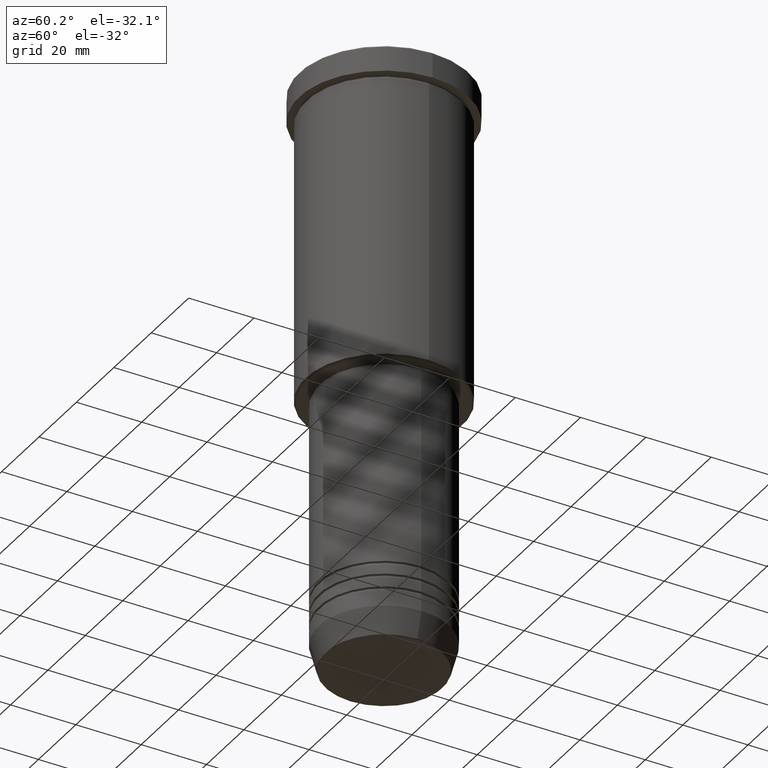
[diagram: clean part render]
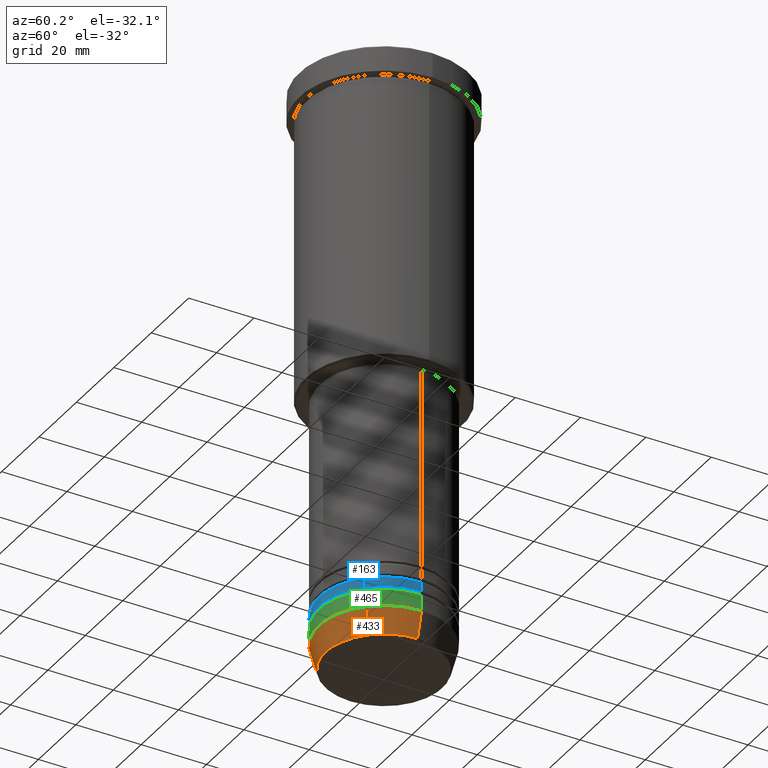
[diagram: same view with three faces highlighted in distinct colors, each labeled with its STEP entity id]
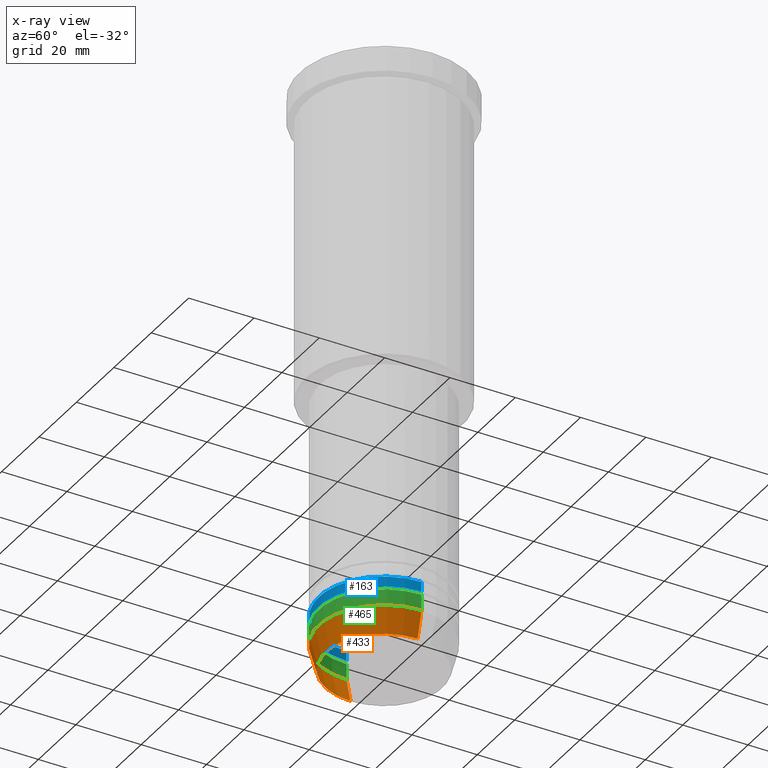
[diagram: x-ray of the same camera — body ghosted, the three highlighted faces saturated]
A machine part, auxiliary view with three faces highlighted in distinct colors.
The next image is the same camera in x-ray (body ghosted, the three faces saturated) — at least one of them is partly hidden behind the body in this view.
Their STEP definitions:

[orange] entity #433 — the highlighted conical surface has half-angle 15 deg.
#9 = DIRECTION ( 'NONE',  ( 0.2588190451025213501, 0.000000000000000000, 0.9659258262890680902 ) ) ;
#48 = LINE ( 'NONE', #1153, #486 ) ;
#67 = ORIENTED_EDGE ( 'NONE', *, *, #251, .T. ) ;
#75 = AXIS2_PLACEMENT_3D ( 'NONE', #825, #532, #728 ) ;
#80 = VERTEX_POINT ( 'NONE', #1065 ) ;
#172 = DIRECTION ( 'NONE',  ( 1.000000000000000000, 0.000000000000000000, 0.000000000000000000 ) ) ;
#173 = LINE ( 'NONE', #382, #1176 ) ;
#193 = DIRECTION ( 'NONE',  ( -0.000000000000000000, -0.000000000000000000, 1.000000000000000000 ) ) ;
#205 = CARTESIAN_POINT ( 'NONE',  ( 17.95570587970607690, 0.000000000000000000, -179.6294095225512706 ) ) ;
#251 = EDGE_CURVE ( 'NONE', #291, #963, #1006, .T. ) ;
#260 = CONICAL_SURFACE ( 'NONE', #75, 20.00000000000000355, 0.2617993877991500740 ) ;
#291 = VERTEX_POINT ( 'NONE', #477 ) ;
#365 = CARTESIAN_POINT ( 'NONE',  ( 0.000000000000000000, 0.000000000000000000, -172.0000000000000000 ) ) ;
#382 = CARTESIAN_POINT ( 'NONE',  ( 20.00000000000000355, 0.000000000000000000, -172.0000000000000000 ) ) ;
#433 = ADVANCED_FACE ( 'NONE', ( #1114 ), #260, .T. ) ;
#477 = CARTESIAN_POINT ( 'NONE',  ( -17.95570587970607690, 2.324116685748021371E-15, -179.6294095225512706 ) ) ;
#481 = AXIS2_PLACEMENT_3D ( 'NONE', #1012, #193, #924 ) ;
#486 = VECTOR ( 'NONE', #1157, 1000.000000000000000 ) ;
#532 = DIRECTION ( 'NONE',  ( -0.000000000000000000, -0.000000000000000000, 1.000000000000000000 ) ) ;
#575 = AXIS2_PLACEMENT_3D ( 'NONE', #365, #1001, #172 ) ;
#671 = ORIENTED_EDGE ( 'NONE', *, *, #1030, .T. ) ;
#676 = ORIENTED_EDGE ( 'NONE', *, *, #947, .F. ) ;
#728 = DIRECTION ( 'NONE',  ( 1.000000000000000000, 0.000000000000000000, 0.000000000000000000 ) ) ;
#729 = EDGE_CURVE ( 'NONE', #887, #80, #903, .T. ) ;
#825 = CARTESIAN_POINT ( 'NONE',  ( 0.000000000000000000, 0.000000000000000000, -172.0000000000000000 ) ) ;
#887 = VERTEX_POINT ( 'NONE', #923 ) ;
#903 = CIRCLE ( 'NONE', #575, 20.00000000000000355 ) ;
#923 = CARTESIAN_POINT ( 'NONE',  ( -20.00000000000000355, 2.449293598294706907E-15, -172.0000000000000000 ) ) ;
#924 = DIRECTION ( 'NONE',  ( 1.000000000000000000, 0.000000000000000000, 0.000000000000000000 ) ) ;
#947 = EDGE_CURVE ( 'NONE', #291, #887, #48, .T. ) ;
#963 = VERTEX_POINT ( 'NONE', #205 ) ;
#1001 = DIRECTION ( 'NONE',  ( -0.000000000000000000, -0.000000000000000000, 1.000000000000000000 ) ) ;
#1006 = CIRCLE ( 'NONE', #481, 17.95570587970607690 ) ;
#1012 = CARTESIAN_POINT ( 'NONE',  ( 0.000000000000000000, 0.000000000000000000, -179.6294095225512706 ) ) ;
#1014 = ORIENTED_EDGE ( 'NONE', *, *, #729, .F. ) ;
#1030 = EDGE_CURVE ( 'NONE', #963, #80, #173, .T. ) ;
#1065 = CARTESIAN_POINT ( 'NONE',  ( 20.00000000000000355, 0.000000000000000000, -172.0000000000000000 ) ) ;
#1081 = EDGE_LOOP ( 'NONE', ( #676, #67, #671, #1014 ) ) ;
#1114 = FACE_OUTER_BOUND ( 'NONE', #1081, .T. ) ;
#1153 = CARTESIAN_POINT ( 'NONE',  ( -20.00000000000000355, 2.449293598294706907E-15, -172.0000000000000000 ) ) ;
#1157 = DIRECTION ( 'NONE',  ( -0.2588190451025213501, 3.169619151431772337E-17, 0.9659258262890680902 ) ) ;
#1176 = VECTOR ( 'NONE', #9, 1000.000000000000000 ) ;

[blue] entity #163 — the highlighted cylindrical surface (partial cylindrical patch) has radius 20 mm, axis along (-0, -0, 1).
#69 = LINE ( 'NONE', #782, #884 ) ;
#87 = CARTESIAN_POINT ( 'NONE',  ( -20.00000000000000355, 2.449293598294706907E-15, -165.9999999999999716 ) ) ;
#131 = AXIS2_PLACEMENT_3D ( 'NONE', #911, #819, #461 ) ;
#163 = ADVANCED_FACE ( 'NONE', ( #813 ), #354, .T. ) ;
#198 = DIRECTION ( 'NONE',  ( 1.000000000000000000, 0.000000000000000000, 0.000000000000000000 ) ) ;
#254 = CARTESIAN_POINT ( 'NONE',  ( 0.000000000000000000, 0.000000000000000000, -163.0000000000000000 ) ) ;
#292 = ORIENTED_EDGE ( 'NONE', *, *, #785, .T. ) ;
#303 = EDGE_CURVE ( 'NONE', #1050, #351, #69, .T. ) ;
#351 = VERTEX_POINT ( 'NONE', #932 ) ;
#354 = CYLINDRICAL_SURFACE ( 'NONE', #131, 20.00000000000000355 ) ;
#384 = CIRCLE ( 'NONE', #918, 20.00000000000000355 ) ;
#388 = LINE ( 'NONE', #909, #502 ) ;
#402 = DIRECTION ( 'NONE',  ( -0.000000000000000000, -0.000000000000000000, 1.000000000000000000 ) ) ;
#461 = DIRECTION ( 'NONE',  ( 1.000000000000000000, 0.000000000000000000, 0.000000000000000000 ) ) ;
#502 = VECTOR ( 'NONE', #824, 1000.000000000000000 ) ;
#505 = VERTEX_POINT ( 'NONE', #681 ) ;
#577 = EDGE_LOOP ( 'NONE', ( #1131, #292, #1138, #1122 ) ) ;
#616 = DIRECTION ( 'NONE',  ( -0.000000000000000000, -0.000000000000000000, 1.000000000000000000 ) ) ;
#681 = CARTESIAN_POINT ( 'NONE',  ( 20.00000000000000000, 0.000000000000000000, -163.0000000000000000 ) ) ;
#688 = EDGE_CURVE ( 'NONE', #351, #505, #899, .T. ) ;
#716 = CARTESIAN_POINT ( 'NONE',  ( 0.000000000000000000, 0.000000000000000000, -165.9999999999999716 ) ) ;
#725 = CARTESIAN_POINT ( 'NONE',  ( 20.00000000000000355, 0.000000000000000000, -165.9999999999999716 ) ) ;
#754 = VERTEX_POINT ( 'NONE', #725 ) ;
#782 = CARTESIAN_POINT ( 'NONE',  ( -20.00000000000000355, 2.449293598294706907E-15, 0.000000000000000000 ) ) ;
#785 = EDGE_CURVE ( 'NONE', #1050, #754, #384, .T. ) ;
#798 = DIRECTION ( 'NONE',  ( -0.000000000000000000, -0.000000000000000000, 1.000000000000000000 ) ) ;
#813 = FACE_OUTER_BOUND ( 'NONE', #577, .T. ) ;
#819 = DIRECTION ( 'NONE',  ( -0.000000000000000000, -0.000000000000000000, 1.000000000000000000 ) ) ;
#824 = DIRECTION ( 'NONE',  ( -0.000000000000000000, -0.000000000000000000, 1.000000000000000000 ) ) ;
#884 = VECTOR ( 'NONE', #798, 1000.000000000000000 ) ;
#899 = CIRCLE ( 'NONE', #1078, 20.00000000000000000 ) ;
#909 = CARTESIAN_POINT ( 'NONE',  ( 20.00000000000000355, 0.000000000000000000, 0.000000000000000000 ) ) ;
#911 = CARTESIAN_POINT ( 'NONE',  ( 0.000000000000000000, 0.000000000000000000, 0.000000000000000000 ) ) ;
#918 = AXIS2_PLACEMENT_3D ( 'NONE', #716, #402, #198 ) ;
#932 = CARTESIAN_POINT ( 'NONE',  ( -20.00000000000000000, 2.449293598294706513E-15, -163.0000000000000000 ) ) ;
#1045 = EDGE_CURVE ( 'NONE', #754, #505, #388, .T. ) ;
#1050 = VERTEX_POINT ( 'NONE', #87 ) ;
#1078 = AXIS2_PLACEMENT_3D ( 'NONE', #254, #616, #1169 ) ;
#1122 = ORIENTED_EDGE ( 'NONE', *, *, #688, .F. ) ;
#1131 = ORIENTED_EDGE ( 'NONE', *, *, #303, .F. ) ;
#1138 = ORIENTED_EDGE ( 'NONE', *, *, #1045, .T. ) ;
#1169 = DIRECTION ( 'NONE',  ( 1.000000000000000000, 0.000000000000000000, 0.000000000000000000 ) ) ;

[green] entity #465 — the highlighted cylindrical surface (partial cylindrical patch) has radius 20 mm, axis along (-0, -0, 1).
#3 = CARTESIAN_POINT ( 'NONE',  ( 0.000000000000000000, 0.000000000000000000, 0.000000000000000000 ) ) ;
#78 = CARTESIAN_POINT ( 'NONE',  ( 20.00000000000000355, 0.000000000000000000, 0.000000000000000000 ) ) ;
#80 = VERTEX_POINT ( 'NONE', #1065 ) ;
#119 = CARTESIAN_POINT ( 'NONE',  ( 20.00000000000000000, 0.000000000000000000, -167.0000000000000000 ) ) ;
#145 = ORIENTED_EDGE ( 'NONE', *, *, #1086, .F. ) ;
#157 = EDGE_CURVE ( 'NONE', #80, #572, #905, .T. ) ;
#172 = DIRECTION ( 'NONE',  ( 1.000000000000000000, 0.000000000000000000, 0.000000000000000000 ) ) ;
#190 = DIRECTION ( 'NONE',  ( 1.000000000000000000, 0.000000000000000000, 0.000000000000000000 ) ) ;
#201 = ORIENTED_EDGE ( 'NONE', *, *, #729, .T. ) ;
#219 = ORIENTED_EDGE ( 'NONE', *, *, #157, .T. ) ;
#359 = AXIS2_PLACEMENT_3D ( 'NONE', #3, #1090, #362 ) ;
#362 = DIRECTION ( 'NONE',  ( 1.000000000000000000, 0.000000000000000000, 0.000000000000000000 ) ) ;
#365 = CARTESIAN_POINT ( 'NONE',  ( 0.000000000000000000, 0.000000000000000000, -172.0000000000000000 ) ) ;
#366 = DIRECTION ( 'NONE',  ( -0.000000000000000000, -0.000000000000000000, 1.000000000000000000 ) ) ;
#465 = ADVANCED_FACE ( 'NONE', ( #1179 ), #542, .T. ) ;
#542 = CYLINDRICAL_SURFACE ( 'NONE', #359, 20.00000000000000355 ) ;
#552 = DIRECTION ( 'NONE',  ( -0.000000000000000000, -0.000000000000000000, 1.000000000000000000 ) ) ;
#572 = VERTEX_POINT ( 'NONE', #119 ) ;
#575 = AXIS2_PLACEMENT_3D ( 'NONE', #365, #1001, #172 ) ;
#642 = VECTOR ( 'NONE', #366, 1000.000000000000000 ) ;
#644 = AXIS2_PLACEMENT_3D ( 'NONE', #752, #999, #190 ) ;
#690 = VERTEX_POINT ( 'NONE', #1075 ) ;
#729 = EDGE_CURVE ( 'NONE', #887, #80, #903, .T. ) ;
#752 = CARTESIAN_POINT ( 'NONE',  ( 0.000000000000000000, 0.000000000000000000, -167.0000000000000000 ) ) ;
#835 = CARTESIAN_POINT ( 'NONE',  ( -20.00000000000000355, 2.449293598294706907E-15, 0.000000000000000000 ) ) ;
#887 = VERTEX_POINT ( 'NONE', #923 ) ;
#903 = CIRCLE ( 'NONE', #575, 20.00000000000000355 ) ;
#905 = LINE ( 'NONE', #78, #1007 ) ;
#921 = LINE ( 'NONE', #835, #642 ) ;
#923 = CARTESIAN_POINT ( 'NONE',  ( -20.00000000000000355, 2.449293598294706907E-15, -172.0000000000000000 ) ) ;
#956 = EDGE_LOOP ( 'NONE', ( #145, #201, #219, #1049 ) ) ;
#999 = DIRECTION ( 'NONE',  ( -0.000000000000000000, -0.000000000000000000, 1.000000000000000000 ) ) ;
#1001 = DIRECTION ( 'NONE',  ( -0.000000000000000000, -0.000000000000000000, 1.000000000000000000 ) ) ;
#1007 = VECTOR ( 'NONE', #552, 1000.000000000000000 ) ;
#1049 = ORIENTED_EDGE ( 'NONE', *, *, #1083, .F. ) ;
#1065 = CARTESIAN_POINT ( 'NONE',  ( 20.00000000000000355, 0.000000000000000000, -172.0000000000000000 ) ) ;
#1075 = CARTESIAN_POINT ( 'NONE',  ( -20.00000000000000000, 2.449293598294706513E-15, -167.0000000000000000 ) ) ;
#1083 = EDGE_CURVE ( 'NONE', #690, #572, #1142, .T. ) ;
#1086 = EDGE_CURVE ( 'NONE', #887, #690, #921, .T. ) ;
#1090 = DIRECTION ( 'NONE',  ( -0.000000000000000000, -0.000000000000000000, 1.000000000000000000 ) ) ;
#1142 = CIRCLE ( 'NONE', #644, 20.00000000000000000 ) ;
#1179 = FACE_OUTER_BOUND ( 'NONE', #956, .T. ) ;